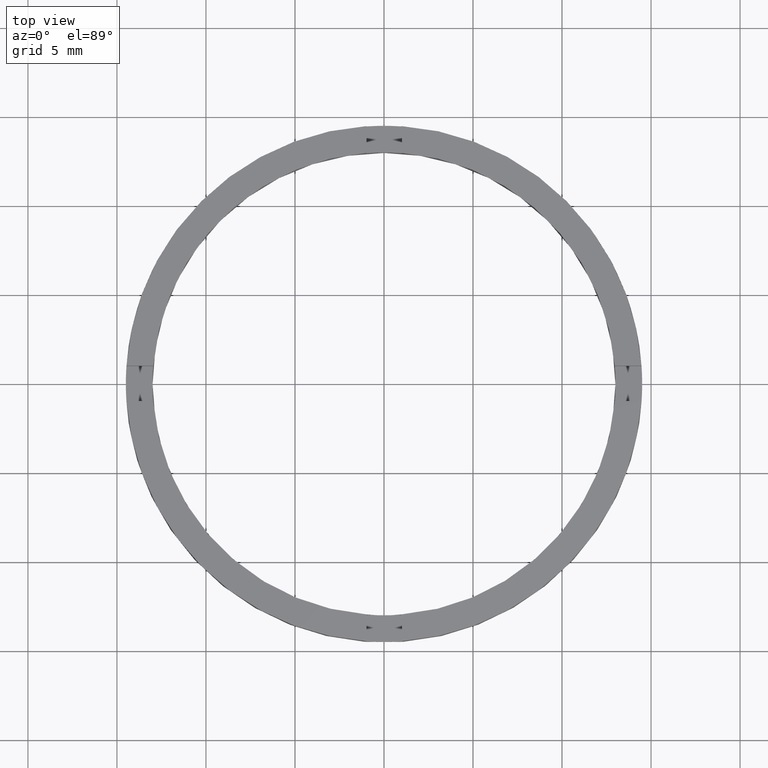
[diagram: clean part render]
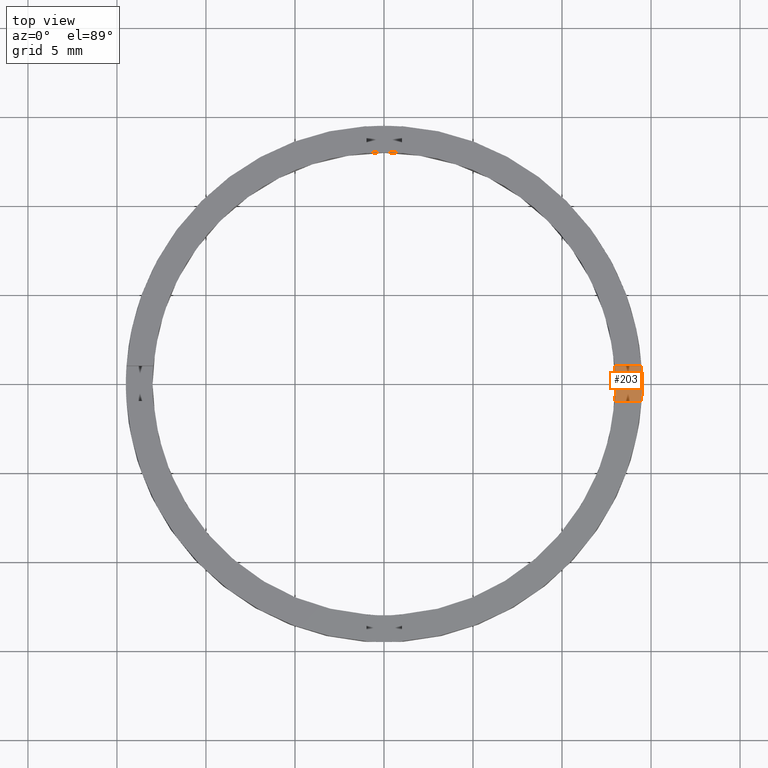
[diagram: same view with one face highlighted and labeled with its STEP entity id]
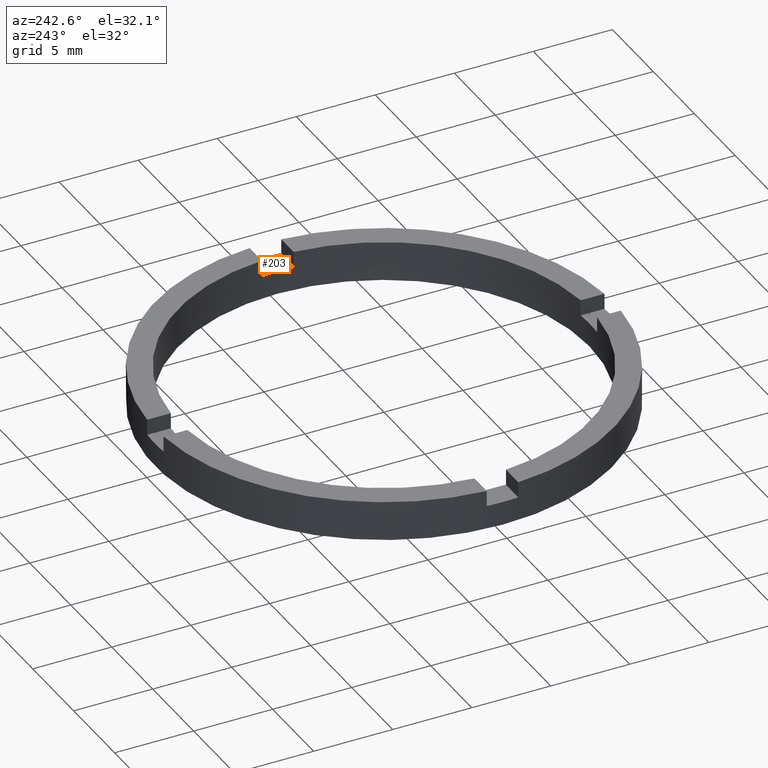
[diagram: same view with one face highlighted and labeled with its STEP entity id]
A machine part, top view. The second image highlights one B-rep face of the part: STEP entity #203.
A second angle (auxiliary view) of the same face is appended — the face is thin or edge-on in the first view.
In plain terms, the highlighted planar face has unit normal (0, 0, 1).
Its self-contained STEP definition (entity closure, byte-faithful):
#19 = VERTEX_POINT ( 'NONE', #620 ) ;
#21 = CARTESIAN_POINT ( 'NONE',  ( 13.00000000000000178, 1.592040838891559293E-15, 1.500000000000000000 ) ) ;
#48 = DIRECTION ( 'NONE',  ( 0.000000000000000000, 0.000000000000000000, 1.000000000000000000 ) ) ;
#87 = DIRECTION ( 'NONE',  ( 0.000000000000000000, 0.000000000000000000, 1.000000000000000000 ) ) ;
#92 = PLANE ( 'NONE',  #313 ) ;
#101 = CARTESIAN_POINT ( 'NONE',  ( 14.50000000000000000, 1.775737858763662015E-15, 1.500000000000000000 ) ) ;
#112 = AXIS2_PLACEMENT_3D ( 'NONE', #300, #204, #742 ) ;
#119 = ORIENTED_EDGE ( 'NONE', *, *, #362, .F. ) ;
#129 = ORIENTED_EDGE ( 'NONE', *, *, #399, .T. ) ;
#139 = VERTEX_POINT ( 'NONE', #361 ) ;
#149 = ORIENTED_EDGE ( 'NONE', *, *, #201, .T. ) ;
#152 = ORIENTED_EDGE ( 'NONE', *, *, #286, .F. ) ;
#153 = ORIENTED_EDGE ( 'NONE', *, *, #451, .T. ) ;
#155 = EDGE_LOOP ( 'NONE', ( #404, #149, #153, #152, #119, #129 ) ) ;
#165 = VERTEX_POINT ( 'NONE', #101 ) ;
#173 = AXIS2_PLACEMENT_3D ( 'NONE', #418, #493, #781 ) ;
#201 = EDGE_CURVE ( 'NONE', #165, #423, #413, .T. ) ;
#202 = CIRCLE ( 'NONE', #354, 13.00000000000000178 ) ;
#203 = ADVANCED_FACE ( 'NONE', ( #685 ), #92, .T. ) ;
#204 = DIRECTION ( 'NONE',  ( 0.000000000000000000, 0.000000000000000000, 1.000000000000000000 ) ) ;
#208 = CARTESIAN_POINT ( 'NONE',  ( 4.499999999999995559, 0.9999999999998402389, 1.500000000000000000 ) ) ;
#233 = LINE ( 'NONE', #208, #497 ) ;
#276 = CARTESIAN_POINT ( 'NONE',  ( 4.499999999999995559, -1.000000000000159872, 1.500000000000000000 ) ) ;
#285 = DIRECTION ( 'NONE',  ( 1.000000000000000000, 0.000000000000000000, -0.000000000000000000 ) ) ;
#286 = EDGE_CURVE ( 'NONE', #722, #19, #202, .T. ) ;
#292 = CIRCLE ( 'NONE', #112, 14.50000000000000000 ) ;
#300 = CARTESIAN_POINT ( 'NONE',  ( 0.000000000000000000, 0.000000000000000000, 1.500000000000000000 ) ) ;
#312 = CARTESIAN_POINT ( 'NONE',  ( 0.000000000000000000, 0.000000000000000000, 1.500000000000000000 ) ) ;
#313 = AXIS2_PLACEMENT_3D ( 'NONE', #407, #87, #285 ) ;
#340 = CARTESIAN_POINT ( 'NONE',  ( 12.96148139681570832, -1.000000000000159428, 1.500000000000000000 ) ) ;
#354 = AXIS2_PLACEMENT_3D ( 'NONE', #312, #737, #741 ) ;
#361 = CARTESIAN_POINT ( 'NONE',  ( 14.46547614148942174, -1.000000000000159428, 1.500000000000000000 ) ) ;
#362 = EDGE_CURVE ( 'NONE', #686, #722, #736, .T. ) ;
#399 = EDGE_CURVE ( 'NONE', #686, #139, #764, .T. ) ;
#404 = ORIENTED_EDGE ( 'NONE', *, *, #609, .T. ) ;
#407 = CARTESIAN_POINT ( 'NONE',  ( 0.000000000000000000, 0.000000000000000000, 1.500000000000000000 ) ) ;
#413 = CIRCLE ( 'NONE', #173, 14.50000000000000000 ) ;
#418 = CARTESIAN_POINT ( 'NONE',  ( 0.000000000000000000, 0.000000000000000000, 1.500000000000000000 ) ) ;
#423 = VERTEX_POINT ( 'NONE', #428 ) ;
#428 = CARTESIAN_POINT ( 'NONE',  ( 14.46547614148944483, 0.9999999999998406830, 1.500000000000000000 ) ) ;
#451 = EDGE_CURVE ( 'NONE', #423, #19, #233, .T. ) ;
#471 = AXIS2_PLACEMENT_3D ( 'NONE', #568, #48, #683 ) ;
#493 = DIRECTION ( 'NONE',  ( 0.000000000000000000, 0.000000000000000000, 1.000000000000000000 ) ) ;
#495 = VECTOR ( 'NONE', #622, 1000.000000000000000 ) ;
#497 = VECTOR ( 'NONE', #500, 1000.000000000000000 ) ;
#500 = DIRECTION ( 'NONE',  ( -1.000000000000000000, -4.336808689942017736E-17, -0.000000000000000000 ) ) ;
#568 = CARTESIAN_POINT ( 'NONE',  ( 0.000000000000000000, 0.000000000000000000, 1.500000000000000000 ) ) ;
#609 = EDGE_CURVE ( 'NONE', #139, #165, #292, .T. ) ;
#620 = CARTESIAN_POINT ( 'NONE',  ( 12.96148139681573497, 0.9999999999998406830, 1.500000000000000000 ) ) ;
#622 = DIRECTION ( 'NONE',  ( 1.000000000000000000, 4.336808689942017736E-17, 0.000000000000000000 ) ) ;
#683 = DIRECTION ( 'NONE',  ( 1.000000000000000000, 0.000000000000000000, 0.000000000000000000 ) ) ;
#685 = FACE_OUTER_BOUND ( 'NONE', #155, .T. ) ;
#686 = VERTEX_POINT ( 'NONE', #340 ) ;
#722 = VERTEX_POINT ( 'NONE', #21 ) ;
#736 = CIRCLE ( 'NONE', #471, 13.00000000000000178 ) ;
#737 = DIRECTION ( 'NONE',  ( 0.000000000000000000, 0.000000000000000000, 1.000000000000000000 ) ) ;
#741 = DIRECTION ( 'NONE',  ( 1.000000000000000000, 0.000000000000000000, 0.000000000000000000 ) ) ;
#742 = DIRECTION ( 'NONE',  ( 1.000000000000000000, 0.000000000000000000, 0.000000000000000000 ) ) ;
#764 = LINE ( 'NONE', #276, #495 ) ;
#781 = DIRECTION ( 'NONE',  ( 1.000000000000000000, 0.000000000000000000, 0.000000000000000000 ) ) ;